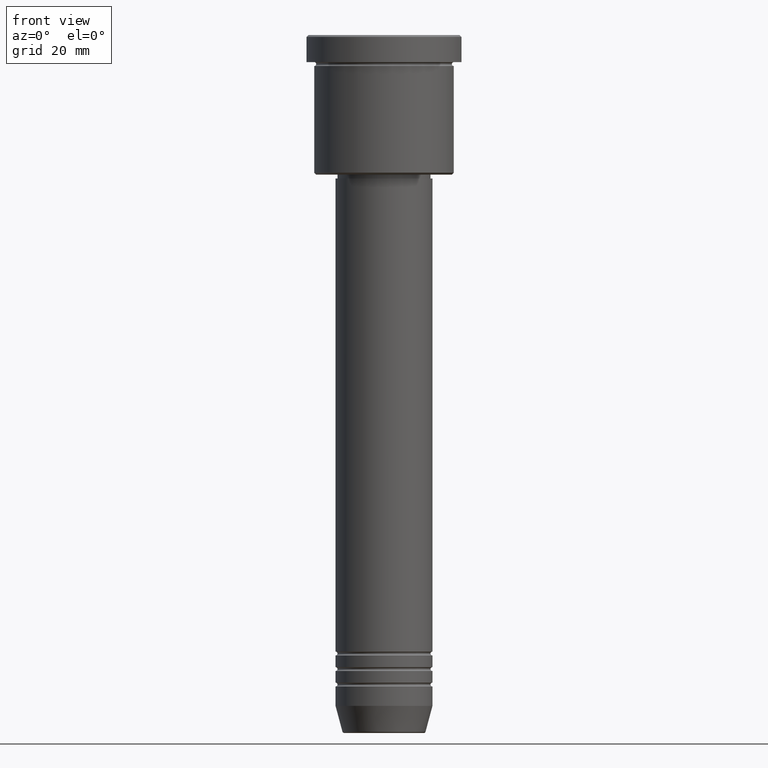
[diagram: clean part render]
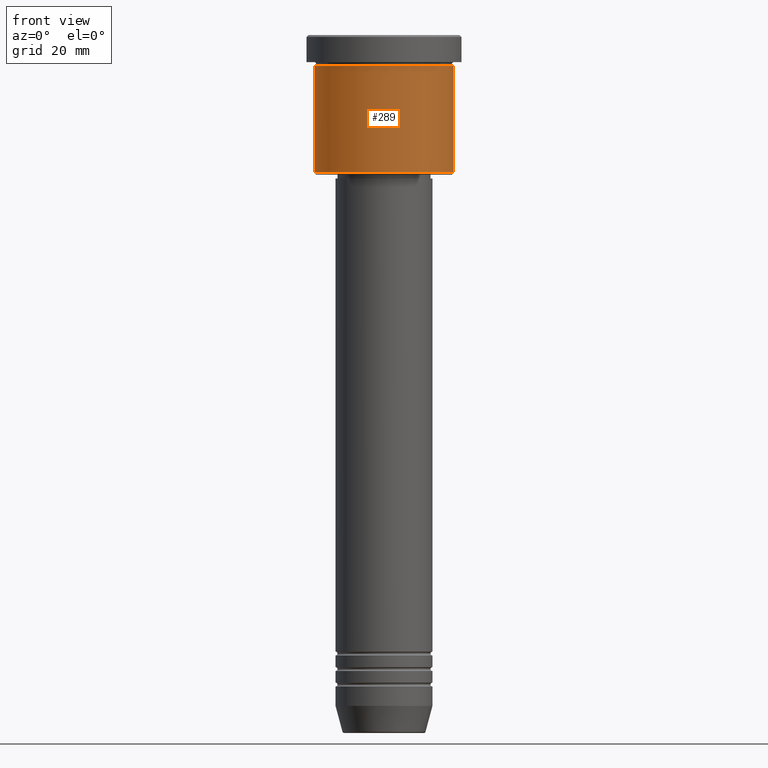
[diagram: same view with one face highlighted and labeled with its STEP entity id]
A machine part, front view. The second image highlights one B-rep face of the part: STEP entity #289.
In plain terms, the highlighted cylindrical surface (partial cylindrical patch) has radius 18 mm, axis along (-0, -0, 1).
Its self-contained STEP definition (entity closure, byte-faithful):
#8 = DIRECTION ( 'NONE',  ( -0.000000000000000000, -0.000000000000000000, 1.000000000000000000 ) ) ;
#12 = ORIENTED_EDGE ( 'NONE', *, *, #654, .F. ) ;
#20 = DIRECTION ( 'NONE',  ( -0.000000000000000000, -0.000000000000000000, 1.000000000000000000 ) ) ;
#73 = CARTESIAN_POINT ( 'NONE',  ( 0.000000000000000000, 0.000000000000000000, -35.50000000000000711 ) ) ;
#77 = CYLINDRICAL_SURFACE ( 'NONE', #1163, 18.00000000000000000 ) ;
#96 = CIRCLE ( 'NONE', #1126, 18.00000000000000000 ) ;
#117 = CARTESIAN_POINT ( 'NONE',  ( 0.000000000000000000, 0.000000000000000000, -7.999999999999996447 ) ) ;
#129 = ORIENTED_EDGE ( 'NONE', *, *, #956, .T. ) ;
#242 = VECTOR ( 'NONE', #8, 1000.000000000000000 ) ;
#289 = ADVANCED_FACE ( 'NONE', ( #363 ), #77, .T. ) ;
#336 = DIRECTION ( 'NONE',  ( -1.000000000000000000, 0.000000000000000000, 0.000000000000000000 ) ) ;
#351 = DIRECTION ( 'NONE',  ( 1.000000000000000000, 0.000000000000000000, 0.000000000000000000 ) ) ;
#363 = FACE_OUTER_BOUND ( 'NONE', #1007, .T. ) ;
#410 = CIRCLE ( 'NONE', #430, 18.00000000000000000 ) ;
#423 = EDGE_CURVE ( 'NONE', #819, #683, #633, .T. ) ;
#430 = AXIS2_PLACEMENT_3D ( 'NONE', #117, #20, #726 ) ;
#471 = DIRECTION ( 'NONE',  ( -0.000000000000000000, -0.000000000000000000, 1.000000000000000000 ) ) ;
#478 = CARTESIAN_POINT ( 'NONE',  ( 18.00000000000000000, 0.000000000000000000, -7.999999999999996447 ) ) ;
#541 = DIRECTION ( 'NONE',  ( -0.000000000000000000, -0.000000000000000000, 1.000000000000000000 ) ) ;
#601 = CARTESIAN_POINT ( 'NONE',  ( -18.00000000000000000, 2.204364238465235428E-15, -7.999999999999996447 ) ) ;
#633 = LINE ( 'NONE', #909, #242 ) ;
#654 = EDGE_CURVE ( 'NONE', #826, #816, #1110, .T. ) ;
#683 = VERTEX_POINT ( 'NONE', #478 ) ;
#699 = CARTESIAN_POINT ( 'NONE',  ( -18.00000000000000000, 2.204364238465235428E-15, -35.50000000000000711 ) ) ;
#713 = DIRECTION ( 'NONE',  ( -0.000000000000000000, -0.000000000000000000, 1.000000000000000000 ) ) ;
#726 = DIRECTION ( 'NONE',  ( 1.000000000000000000, 0.000000000000000000, 0.000000000000000000 ) ) ;
#800 = CARTESIAN_POINT ( 'NONE',  ( 0.000000000000000000, 0.000000000000000000, 0.000000000000000000 ) ) ;
#812 = VECTOR ( 'NONE', #471, 1000.000000000000000 ) ;
#816 = VERTEX_POINT ( 'NONE', #601 ) ;
#819 = VERTEX_POINT ( 'NONE', #888 ) ;
#826 = VERTEX_POINT ( 'NONE', #699 ) ;
#888 = CARTESIAN_POINT ( 'NONE',  ( 18.00000000000000000, 0.000000000000000000, -35.50000000000000711 ) ) ;
#909 = CARTESIAN_POINT ( 'NONE',  ( 18.00000000000000000, 0.000000000000000000, 0.000000000000000000 ) ) ;
#956 = EDGE_CURVE ( 'NONE', #826, #819, #96, .T. ) ;
#1007 = EDGE_LOOP ( 'NONE', ( #12, #129, #1018, #1080 ) ) ;
#1014 = CARTESIAN_POINT ( 'NONE',  ( -18.00000000000000000, 2.204364238465235428E-15, 0.000000000000000000 ) ) ;
#1018 = ORIENTED_EDGE ( 'NONE', *, *, #423, .T. ) ;
#1049 = EDGE_CURVE ( 'NONE', #816, #683, #410, .T. ) ;
#1080 = ORIENTED_EDGE ( 'NONE', *, *, #1049, .F. ) ;
#1110 = LINE ( 'NONE', #1014, #812 ) ;
#1126 = AXIS2_PLACEMENT_3D ( 'NONE', #73, #541, #336 ) ;
#1163 = AXIS2_PLACEMENT_3D ( 'NONE', #800, #713, #351 ) ;